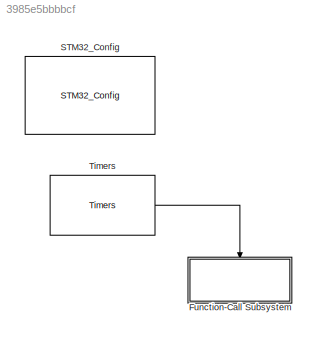
MODEL slx_3985e5bbbbcf
KIND model
CONFIG AbsTol = auto
CONFIG EnableMultiTasking = off
CONFIG FixedStep = 0.001
CONFIG MaxStep = auto
CONFIG MinStep = auto
CONFIG RelTol = 1e-3
CONFIG SampleTimeConstraint = Unconstrained
CONFIG Solver = FixedStepDiscrete
CONFIG SolverName = FixedStepDiscrete
CONFIG StartTime = 0.0
CONFIG StopTime = 10.0
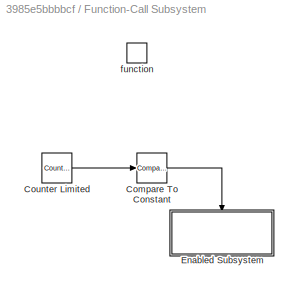
BLOCK [SubSystem] Function-Call Subsystem
  Ports = [0, 0, 0, 1]
  RequestExecContextInheritance = off
  TreatAsAtomicUnit = on
BLOCK [Reference] Function-Call Subsystem/Compare To Constant  REF=simulink/Logic and Bit
Operations/Compare
To Constant
  Ports = [1, 1]
  SourceBlock = simulink/Logic and Bit\nOperations/Compare\nTo Constant
  SourceProductBaseCode = SL
  SourceProductName = Simulink
  SourceType = Compare To Constant
BLOCK [Reference] Function-Call Subsystem/Counter Limited  REF=simulink/Sources/Counter
Limited
  Ports = [0, 1]
  SourceBlock = simulink/Sources/Counter\nLimited
  SourceProductBaseCode = SL
  SourceProductName = Simulink
  SourceType = Counter Limited
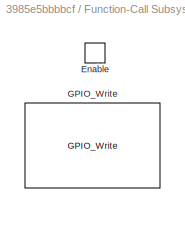
BLOCK [SubSystem] Function-Call Subsystem/Enabled Subsystem
  Ports = [0, 0, 1]
  RequestExecContextInheritance = off
  TreatAsAtomicUnit = on
BLOCK [EnablePort] Function-Call Subsystem/Enabled Subsystem/Enable
  Ports = []
BLOCK [Reference] Function-Call Subsystem/Enabled Subsystem/GPIO_Write  REF=GPIO_Lib/GPIO_Write
  Ports = []
  SourceBlock = GPIO_Lib/GPIO_Write
  SourceProductName = Target Support Package - STM32 Adapter
  SourceType = GPIO_Write
BLOCK [TriggerPort] Function-Call Subsystem/function
  Ports = []
  StatesWhenEnabling = held
  TriggerType = function-call
  VariantControl = Variant
BLOCK [Reference] STM32_Config  REF=STM32_Config_Lib/STM32_Config
  Ports = []
  Priority = 0
  SourceBlock = STM32_Config_Lib/STM32_Config
  SourceProductName = Target Support Package - STM32 Adapter
  SourceType = STM32_Config
BLOCK [Reference] Timers  REF=TIMERS_Lib/Timers
  Ports = [0, 1]
  SourceBlock = TIMERS_Lib/Timers
  SourceProductName = Target Support Package - STM32 Adapter
  SourceType = Timers
LINE Function-Call Subsystem/Compare To Constant:1 -> Function-Call Subsystem/Enabled Subsystem:enable
LINE Function-Call Subsystem/Counter Limited:1 -> Function-Call Subsystem/Compare To Constant:1
LINE Timers:1 -> Function-Call Subsystem:trigger
